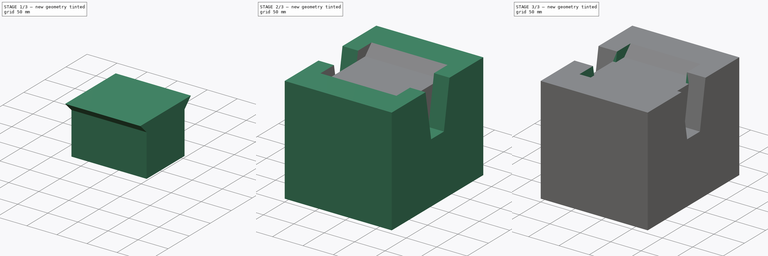
[diagram: build sequence overview — one tinted view per stage of 3, left to right]
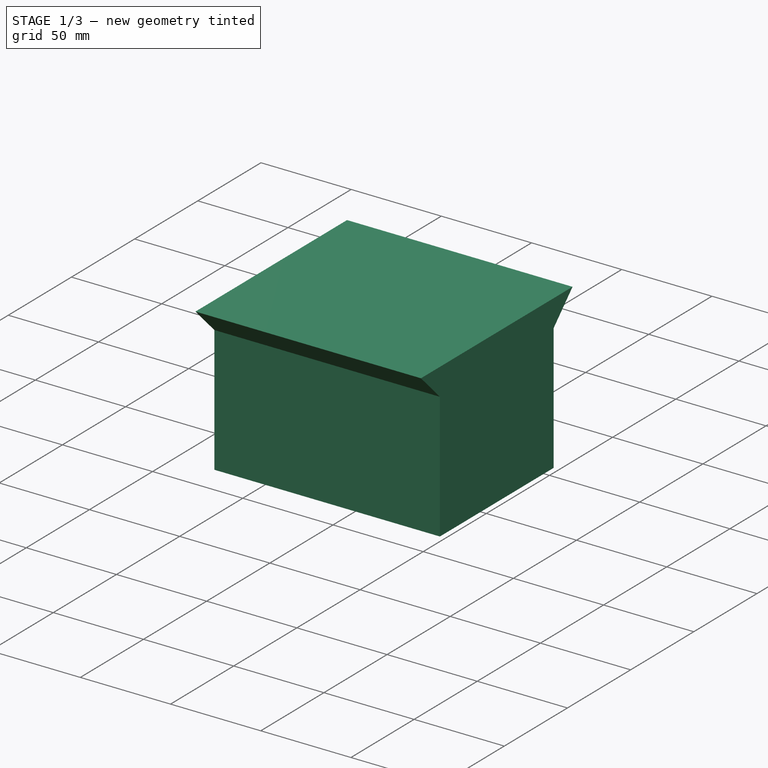
[diagram: stage 1 of 3 — iso view after this stage's code; geometry added in this stage tinted green]
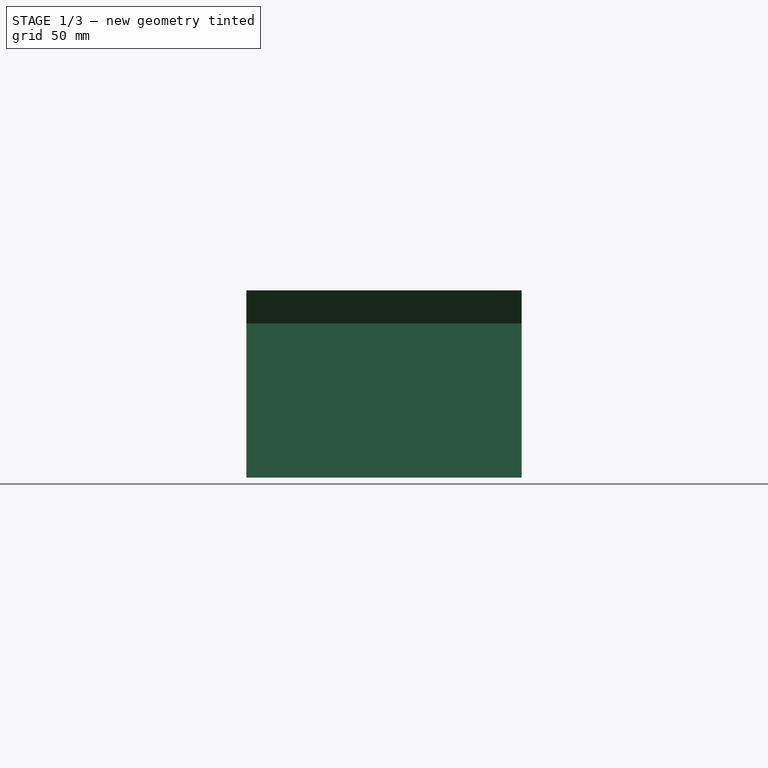
[diagram: stage 1 of 3 — front view after this stage's code; geometry added in this stage tinted green]
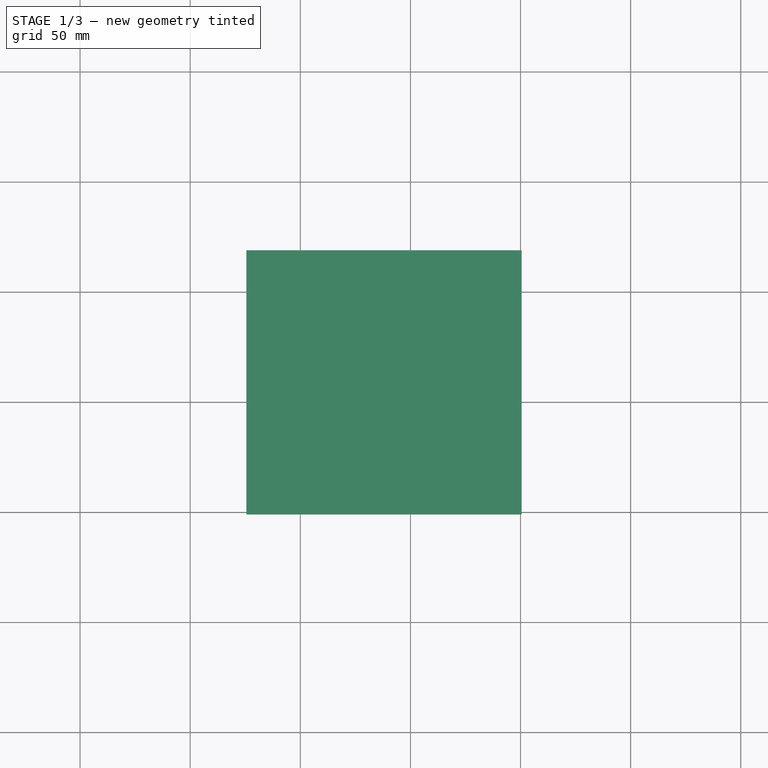
[diagram: stage 1 of 3 — top view after this stage's code; geometry added in this stage tinted green]
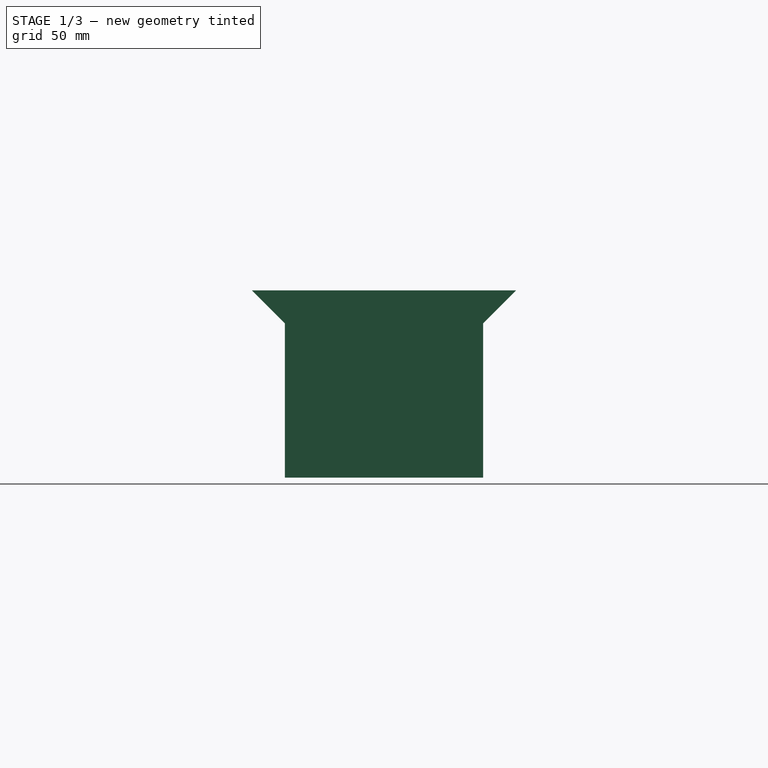
[diagram: stage 1 of 3 — right view after this stage's code; geometry added in this stage tinted green]
FCSTD DOCUMENT  (FreeCAD 1.0R38641 +678 (Git))
Label: CONECTOR-GRUPO-KICAD
License: All rights reserved
LicenseURL: https://en.wikipedia.org/wiki/All_rights_reserved
objects: Sketcher::SketchObject×5, Image::ImagePlane×4, Part::Extrusion×3, Part::MultiFuse×2, Part::Part2DObjectPython×1, Part::Loft×1, Part::Cut×1, Part::Mirroring×1
note: 19 computed .brp shape members not serialized (recipe doc carries the construction recipe); baked Part::Feature solids carry a one-line shape summary decoded from their .brp

FEATURE [Image::ImagePlane] _749067138_OTS_828_065_01  label="1749067138-OTS-828-065-01"
  Placement = pos=(731.861,-216.702,-1) rot=(0,0,1;0rad)
  XSize = 2098.1
  YSize = 1472.9
FEATURE [Sketcher::SketchObject] Sketch
  ArcFitTolerance = 1e-06
  FullyConstrained = true
  MakeInternals = false
  sketch-geometry (4):
    g0: LineSegment StartX=0 StartY=0 StartZ=0 EndX=176 EndY=0 EndZ=0
    g1: LineSegment StartX=176 StartY=0 StartZ=0 EndX=176 EndY=215.1 EndZ=0
    g2: LineSegment StartX=176 StartY=215.1 StartZ=0 EndX=0 EndY=215.1 EndZ=0
    g3: LineSegment StartX=0 StartY=215.1 StartZ=0 EndX=0 EndY=0 EndZ=0
  constraints (11):
    c: Coincident(g0,g1)
    c: Coincident(g1,g2)
    c: Coincident(g2,g3)
    c: Coincident(g3,g0)
    c: Horizontal(g0)
    c: Horizontal(g2)
    c: Vertical(g1)
    c: Vertical(g3)
    c: Coincident(g0,g-1)
    c: DistanceY(g3,g3) = 215.1
    c: DistanceX(g2,g2) = 176
FEATURE [Part::Part2DObjectPython] Rectangle  # Draft 2D object (typed FeaturePython)
  Area = 37857.6
  ChamferSize = 0
  Columns = 1
  FilletRadius = 0
  Height = 215.1
  Length = 176
  MakeFace = true
  Rows = 1
FEATURE [Sketcher::SketchObject] Sketch001
  ArcFitTolerance = 1e-06
  ExternalGeometry = -> [Rectangle]
  FullyConstrained = true
  MakeInternals = false
  Placement = pos=(0,0,0) rot=(0.57735,0.57735,0.57735;2.0944rad)
  sketch-geometry (10):
    g0: LineSegment StartX=0 StartY=0 StartZ=0 EndX=215.1 EndY=0 EndZ=0
    g1: LineSegment StartX=215.1 StartY=0 StartZ=0 EndX=215.1 EndY=175 EndZ=0
    g2: LineSegment StartX=215.1 StartY=175 StartZ=0 EndX=135.775 EndY=175 EndZ=0
    g3: LineSegment StartX=0 StartY=175 StartZ=0 EndX=0 EndY=0 EndZ=0
    g4: LineSegment StartX=79.3255 StartY=175 StartZ=0 EndX=92.55 EndY=100 EndZ=0
    g5: LineSegment StartX=92.55 StartY=100 StartZ=0 EndX=122.55 EndY=100 EndZ=0
    g6: LineSegment StartX=122.55 StartY=100 StartZ=0 EndX=135.775 EndY=175 EndZ=0
    g7: LineSegment [constr] StartX=135.775 StartY=175 StartZ=0 EndX=79.3255 EndY=175 EndZ=0
    g8: LineSegment StartX=79.3255 StartY=175 StartZ=0 EndX=0 EndY=175 EndZ=0
    g9: LineSegment [constr] StartX=107.55 StartY=175 StartZ=0 EndX=107.55 EndY=100 EndZ=0
  constraints (26):
    c: Coincident(g0,g1)
    c: Coincident(g1,g2)
    c: Coincident(g8,g3)
    c: Coincident(g3,g0)
    c: Horizontal(g2)
    c: Vertical(g1)
    c: Vertical(g3)
    c: Coincident(g0,g-1)
    c: Coincident(g0,g-3)
    c: DistanceY(g3,g3) = 175
    c: Coincident(g4,g5)
    c: Coincident(g5,g6)
    c: Coincident(g6,g7)
    c: Coincident(g7,g4)
    c: Horizontal(g5)
    c: Horizontal(g7)
    c: Coincident(g4,g8)
    c: Coincident(g2,g6)
    c: Horizontal(g8)
    c: Symmetric(g7,g7,g9)
    c: Symmetric(g5,g5,g9)
    c: Vertical(g9)
    c: Equal(g8,g2)
    c: DistanceY(g9,g9) = 75
    c: Angle(g5,g4) = 1.74533
    c: Distance(g5,g5) = 30
FEATURE [Part::Extrusion] Extrude
  Base = -> Sketch001
  Dir = (176,0,0)
  DirLink = -> Rectangle [Edge1]
  DirMode = 1
  FaceMakerClass = Part::FaceMakerBullseye
  FaceMakerMode = 3
  LengthFwd = 0
  LengthRev = 0
  Solid = true
  Symmetric = false
FEATURE [Image::ImagePlane] CONECTOR
  Placement = pos=(90,109,175) rot=(0,0,1;0rad)
  XSize = 181.52
  YSize = 219.44
FEATURE [Image::ImagePlane] LATERAL
  Placement = pos=(0,176,8) rot=(0.57735,-0.57735,-0.57735;2.0944rad)
  XSize = 357.48
  YSize = 339.228
FEATURE [Image::ImagePlane] SUPERIOR
  Placement = pos=(45,165,174) rot=(0,0,1;0rad)
  XSize = 411.84
  YSize = 493.12
FEATURE [Sketcher::SketchObject] Sketch002
  ArcFitTolerance = 1e-06
  AttachmentSupport = -> [Extrude]
  ExternalGeometry = -> [Extrude]
  FullyConstrained = true
  MakeInternals = false
  MapMode = 5
  Placement = pos=(0,0,175) rot=(0,0,1;0rad)
  sketch-geometry (24):
    g0: LineSegment StartX=25.5 StartY=167.55 StartZ=0 EndX=25.5 EndY=47.55 EndZ=0
    g1: LineSegment StartX=25.5 StartY=47.55 StartZ=0 EndX=150.5 EndY=47.55 EndZ=0
    g2: LineSegment StartX=150.5 StartY=47.55 StartZ=0 EndX=150.5 EndY=167.55 EndZ=0
    g3: LineSegment StartX=150.5 StartY=167.55 StartZ=0 EndX=25.5 EndY=167.55 EndZ=0
    g4: LineSegment [constr] StartX=25.5 StartY=152.55 StartZ=0 EndX=25.5 EndY=62.55 EndZ=0
    g5: LineSegment [constr] StartX=25.5 StartY=62.55 StartZ=0 EndX=150.5 EndY=62.55 EndZ=0
    g6: LineSegment [constr] StartX=150.5 StartY=62.55 StartZ=0 EndX=150.5 EndY=152.55 EndZ=0
    g7: LineSegment [constr] StartX=150.5 StartY=152.55 StartZ=0 EndX=25.5 EndY=152.55 EndZ=0
    g8: LineSegment [constr] StartX=88 StartY=215.1 StartZ=0 EndX=88 EndY=167.55 EndZ=0
    g9: LineSegment [constr] StartX=88 StartY=167.55 StartZ=0 EndX=88 EndY=152.55 EndZ=0
    g10: LineSegment [constr] StartX=88 StartY=152.55 StartZ=0 EndX=88 EndY=107.55 EndZ=0
    g11: LineSegment [constr] StartX=88 StartY=107.55 StartZ=0 EndX=88 EndY=62.55 EndZ=0
    g12: LineSegment [constr] StartX=88 StartY=62.55 StartZ=0 EndX=88 EndY=47.55 EndZ=0
    g13: LineSegment [constr] StartX=88 StartY=47.55 StartZ=0 EndX=88 EndY=0 EndZ=0
    g14: LineSegment [constr] StartX=0 StartY=107.55 StartZ=0 EndX=25.5 EndY=107.55 EndZ=0
    g15: LineSegment [constr] StartX=25.5 StartY=107.55 StartZ=0 EndX=25.5 EndY=107.55 EndZ=0
    g16: LineSegment [constr] StartX=25.5 StartY=107.55 StartZ=0 EndX=88 EndY=107.55 EndZ=0
    g17: LineSegment [constr] StartX=88 StartY=107.55 StartZ=0 EndX=150.5 EndY=107.55 EndZ=0
    g18: LineSegment [constr] StartX=150.5 StartY=107.55 StartZ=0 EndX=150.5 EndY=107.55 EndZ=0
    g19: LineSegment [constr] StartX=150.5 StartY=107.55 StartZ=0 EndX=176 EndY=107.55 EndZ=0
    g20: LineSegment [constr] StartX=176 StartY=215.1 StartZ=0 EndX=0 EndY=215.1 EndZ=0
    g21: LineSegment [constr] StartX=0 StartY=215.1 StartZ=0 EndX=0 EndY=0 EndZ=0
    g22: LineSegment [constr] StartX=0 StartY=0 StartZ=0 EndX=176 EndY=0 EndZ=0
    g23: LineSegment [constr] StartX=176 StartY=0 StartZ=0 EndX=176 EndY=215.1 EndZ=0
  constraints (63):
    c: Coincident(g1,g2)
    c: Coincident(g2,g3)
    c: Coincident(g3,g0)
    c: Vertical(g0)
    c: Vertical(g2)
    c: Horizontal(g1)
    c: Horizontal(g3)
    c: Coincident(g5,g6)
    c: Coincident(g6,g7)
    c: Coincident(g7,g4)
    c: Vertical(g4)
    c: Vertical(g6)
    c: Horizontal(g5)
    c: Horizontal(g7)
    c: Symmetric(g-3,g-3,g8)
    c: Symmetric(g3,g3,g8)
    c: Vertical(g8)
    c: Coincident(g8,g9)
    c: Symmetric(g7,g7,g9)
    c: Vertical(g9)
    c: Coincident(g9,g10)
    c: Vertical(g10)
    c: Coincident(g10,g11)
    c: Symmetric(g5,g5,g11)
    c: Vertical(g11)
    c: Coincident(g11,g12)
    c: Symmetric(g1,g1,g12)
    c: Vertical(g12)
    c: Coincident(g12,g13)
    c: PointOnObject(g13,g-1)
    c: PointOnObject(g14,g-2)
    c: Symmetric(g0,g0,g14)
    c: Coincident(g14,g15)
    c: Symmetric(g4,g4,g15)
    c: Horizontal(g15)
    c: Coincident(g15,g16)
    c: Coincident(g16,g10)
    c: Horizontal(g16)
    c: Coincident(g16,g17)
    c: Symmetric(g6,g6,g17)
    c: Horizontal(g17)
    c: Coincident(g17,g18)
    c: Symmetric(g2,g2,g18)
    c: Horizontal(g18)
    c: Coincident(g18,g19)
    c: Coincident(g20,g21)
    c: Coincident(g21,g22)
    c: Coincident(g22,g23)
    c: Coincident(g23,g20)
    c: Horizontal(g20)
    c: Horizontal(g22)
    c: Vertical(g21)
    c: Vertical(g23)
    c: Coincident(g21,g-1)
    c: Symmetric(g23,g23,g19)
    c: Horizontal(g14)
    c: Horizontal(g19)
    c: Vertical(g13)
    c: Coincident(g20,g-3)
    c: DistanceY(g2,g2) = 120
    c: DistanceX(g3,g3) = 125
    c: DistanceX(g7,g7) = 125
    c: DistanceY(g4,g4) = 90
FEATURE [Sketcher::SketchObject] Sketch003
  ArcFitTolerance = 1e-06
  ExternalGeometry = -> [Extrude]
  FullyConstrained = true
  MakeInternals = false
  MapMode = 5
  Placement = pos=(0,0,160) rot=(0,0,1;0rad)
  expr: Constraints[59] = Sketch002.Constraints[59]
  expr: Constraints[60] = Sketch002.Constraints[60]
  expr: Constraints[61] = Sketch002.Constraints[61]
  expr: Constraints[62] = Sketch002.Constraints[62]
  sketch-geometry (24):
    g0: LineSegment [constr] StartX=25.5 StartY=167.55 StartZ=0 EndX=25.5 EndY=47.55 EndZ=0
    g1: LineSegment [constr] StartX=25.5 StartY=47.55 StartZ=0 EndX=150.5 EndY=47.55 EndZ=0
    g2: LineSegment [constr] StartX=150.5 StartY=47.55 StartZ=0 EndX=150.5 EndY=167.55 EndZ=0
    g3: LineSegment [constr] StartX=150.5 StartY=167.55 StartZ=0 EndX=25.5 EndY=167.55 EndZ=0
    g4: LineSegment StartX=25.5 StartY=152.55 StartZ=0 EndX=25.5 EndY=62.55 EndZ=0
    g5: LineSegment StartX=25.5 StartY=62.55 StartZ=0 EndX=150.5 EndY=62.55 EndZ=0
    g6: LineSegment StartX=150.5 StartY=62.55 StartZ=0 EndX=150.5 EndY=152.55 EndZ=0
    g7: LineSegment StartX=150.5 StartY=152.55 StartZ=0 EndX=25.5 EndY=152.55 EndZ=0
    g8: LineSegment [constr] StartX=88 StartY=215.1 StartZ=0 EndX=88 EndY=167.55 EndZ=0
    g9: LineSegment [constr] StartX=88 StartY=167.55 StartZ=0 EndX=88 EndY=152.55 EndZ=0
    g10: LineSegment [constr] StartX=88 StartY=152.55 StartZ=0 EndX=88 EndY=107.55 EndZ=0
    g11: LineSegment [constr] StartX=88 StartY=107.55 StartZ=0 EndX=88 EndY=62.55 EndZ=0
    g12: LineSegment [constr] StartX=88 StartY=62.55 StartZ=0 EndX=88 EndY=47.55 EndZ=0
    g13: LineSegment [constr] StartX=88 StartY=47.55 StartZ=0 EndX=88 EndY=0 EndZ=0
    g14: LineSegment [constr] StartX=0 StartY=107.55 StartZ=0 EndX=25.5 EndY=107.55 EndZ=0
    g15: LineSegment [constr] StartX=25.5 StartY=107.55 StartZ=0 EndX=25.5 EndY=107.55 EndZ=0
    g16: LineSegment [constr] StartX=25.5 StartY=107.55 StartZ=0 EndX=88 EndY=107.55 EndZ=0
    g17: LineSegment [constr] StartX=88 StartY=107.55 StartZ=0 EndX=150.5 EndY=107.55 EndZ=0
    g18: LineSegment [constr] StartX=150.5 StartY=107.55 StartZ=0 EndX=150.5 EndY=107.55 EndZ=0
    g19: LineSegment [constr] StartX=150.5 StartY=107.55 StartZ=0 EndX=176 EndY=107.55 EndZ=0
    g20: LineSegment [constr] StartX=176 StartY=215.1 StartZ=0 EndX=0 EndY=215.1 EndZ=0
    g21: LineSegment [constr] StartX=0 StartY=215.1 StartZ=0 EndX=0 EndY=0 EndZ=0
    g22: LineSegment [constr] StartX=0 StartY=0 StartZ=0 EndX=176 EndY=0 EndZ=0
    g23: LineSegment [constr] StartX=176 StartY=0 StartZ=0 EndX=176 EndY=215.1 EndZ=0
  constraints (63):
    c: Coincident(g1,g2)
    c: Coincident(g2,g3)
    c: Coincident(g3,g0)
    c: Vertical(g0)
    c: Vertical(g2)
    c: Horizontal(g1)
    c: Horizontal(g3)
    c: Coincident(g5,g6)
    c: Coincident(g6,g7)
    c: Coincident(g7,g4)
    c: Vertical(g4)
    c: Vertical(g6)
    c: Horizontal(g5)
    c: Horizontal(g7)
    c: Symmetric(g-3,g-3,g8)
    c: Symmetric(g3,g3,g8)
    c: Vertical(g8)
    c: Coincident(g8,g9)
    c: Symmetric(g7,g7,g9)
    c: Vertical(g9)
    c: Coincident(g9,g10)
    c: Vertical(g10)
    c: Coincident(g10,g11)
    c: Symmetric(g5,g5,g11)
    c: Vertical(g11)
    c: Coincident(g11,g12)
    c: Symmetric(g1,g1,g12)
    c: Vertical(g12)
    c: Coincident(g12,g13)
    c: PointOnObject(g13,g-1)
    c: PointOnObject(g14,g-2)
    c: Symmetric(g0,g0,g14)
    c: Coincident(g14,g15)
    c: Symmetric(g4,g4,g15)
    c: Horizontal(g15)
    c: Coincident(g15,g16)
    c: Coincident(g16,g10)
    c: Horizontal(g16)
    c: Coincident(g16,g17)
    c: Symmetric(g6,g6,g17)
    c: Horizontal(g17)
    c: Coincident(g17,g18)
    c: Symmetric(g2,g2,g18)
    c: Horizontal(g18)
    c: Coincident(g18,g19)
    c: Coincident(g20,g21)
    c: Coincident(g21,g22)
    c: Coincident(g22,g23)
    c: Coincident(g23,g20)
    c: Horizontal(g20)
    c: Horizontal(g22)
    c: Vertical(g21)
    c: Vertical(g23)
    c: Coincident(g21,g-1)
    c: Symmetric(g23,g23,g19)
    c: Horizontal(g14)
    c: Horizontal(g19)
    c: Vertical(g13)
    c: Coincident(g20,g-3)
    c: DistanceY(g2,g2) = 120
    c: DistanceX(g3,g3) = 125
    c: DistanceX(g7,g7) = 125
    c: DistanceY(g4,g4) = 90
FEATURE [Part::Loft] Loft
  Closed = false
  MaxDegree = 5
  Ruled = true
  Sections = -> [Sketch002,Sketch003]
  Solid = true
FEATURE [Part::Extrusion] Extrude001
  Base = -> Sketch003
  Dir = (0,0,1)
  DirMode = 2
  FaceMakerClass = Part::FaceMakerBullseye
  FaceMakerMode = 3
  LengthFwd = 70
  LengthRev = 0
  Reversed = true
  Solid = true
  Symmetric = false
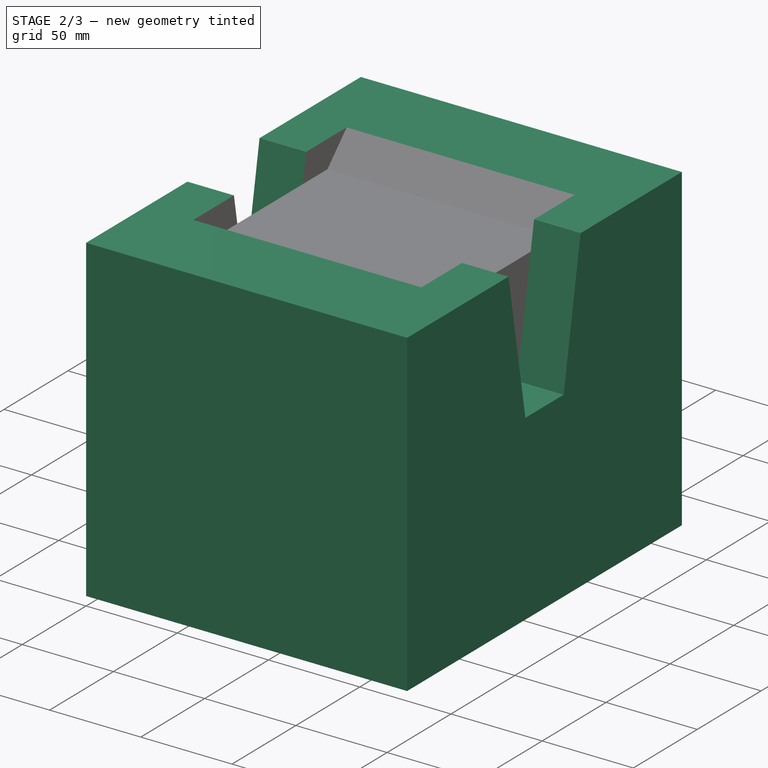
[diagram: stage 2 of 3 — iso view after this stage's code; geometry added in this stage tinted green]
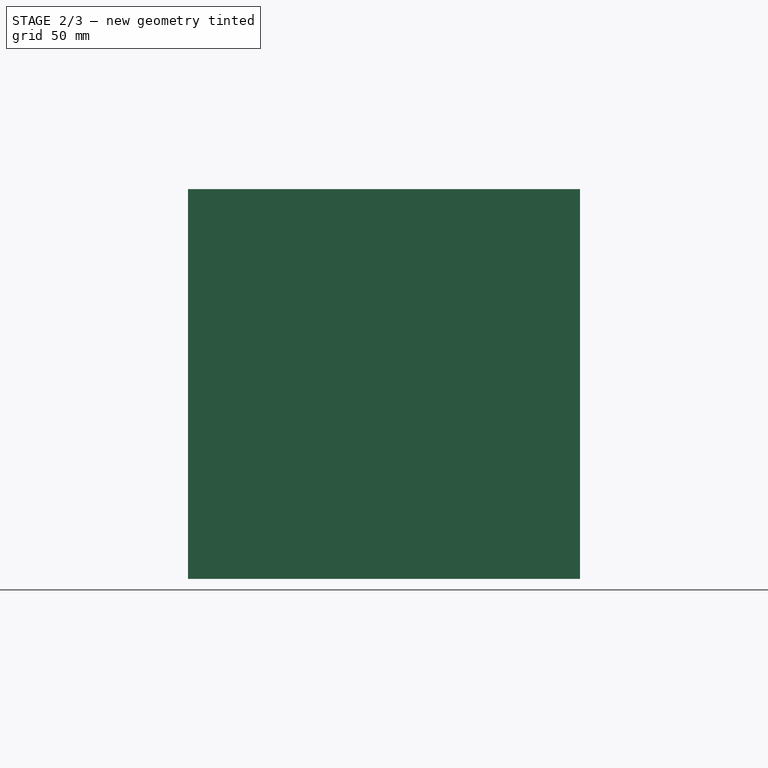
[diagram: stage 2 of 3 — front view after this stage's code; geometry added in this stage tinted green]
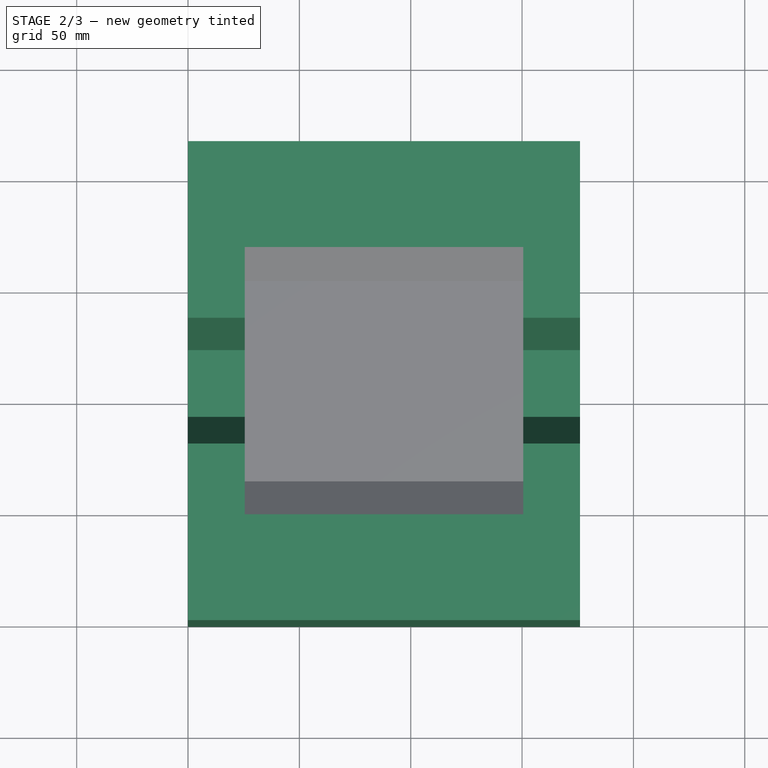
[diagram: stage 2 of 3 — top view after this stage's code; geometry added in this stage tinted green]
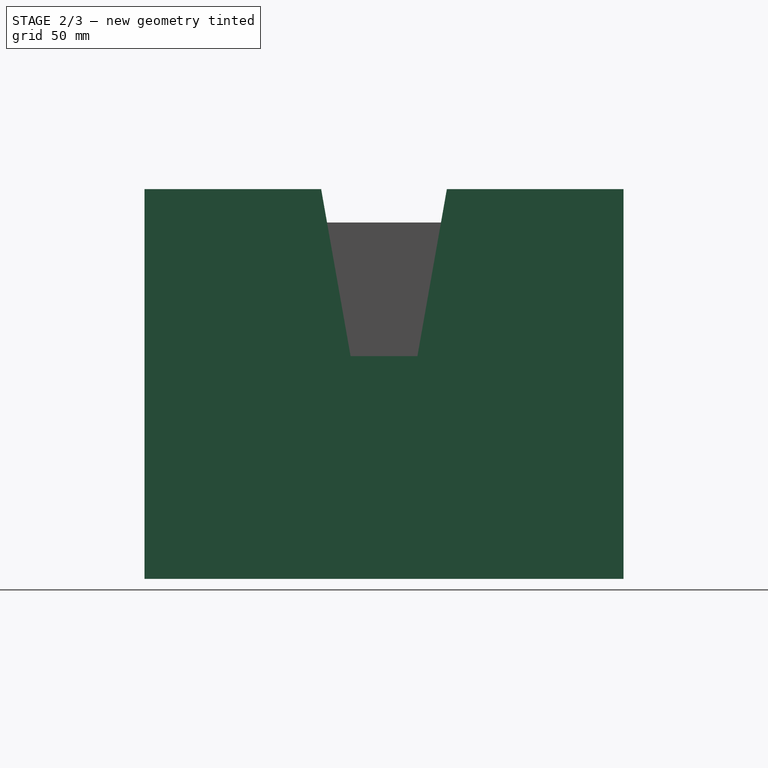
[diagram: stage 2 of 3 — right view after this stage's code; geometry added in this stage tinted green]
FEATURE [Part::Cut] Cut
  Base = -> Extrude
  Refine = true
  Tool = -> Loft
FEATURE [Part::MultiFuse] Fusion
  Refine = true
  Shapes = -> [Cut,Extrude001]
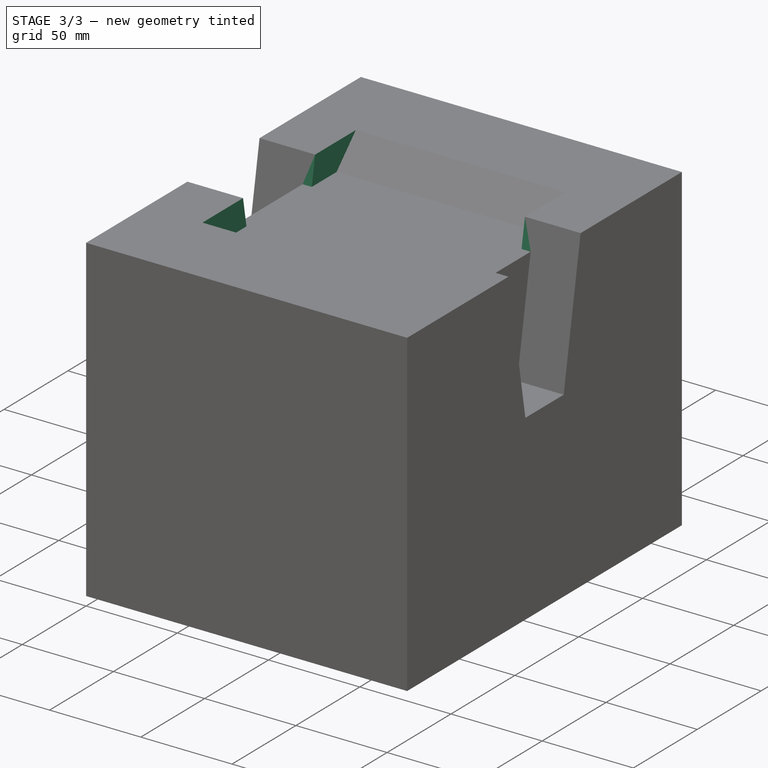
[diagram: stage 3 of 3 — iso view after this stage's code; geometry added in this stage tinted green]
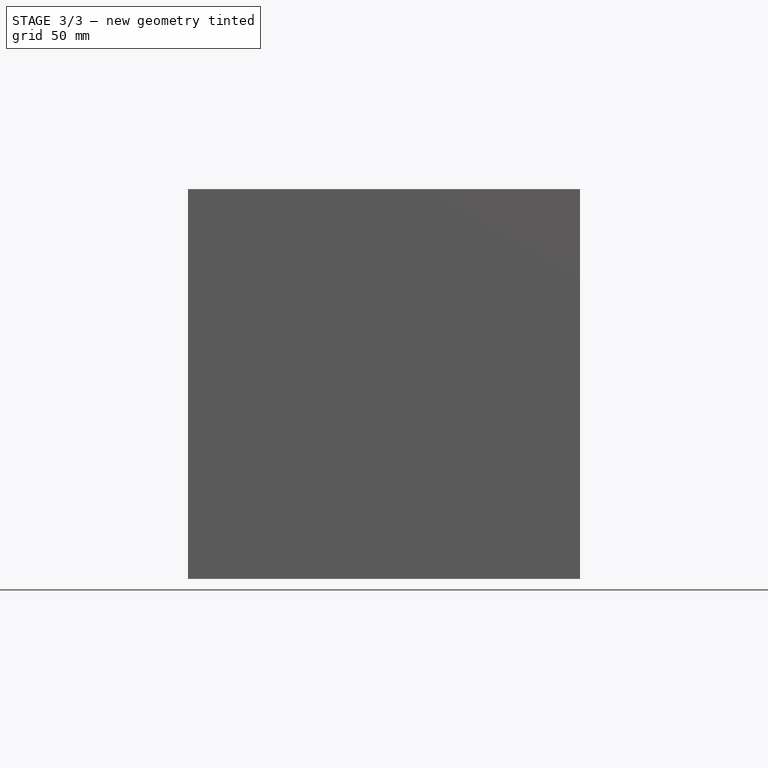
[diagram: stage 3 of 3 — front view after this stage's code; geometry added in this stage tinted green]
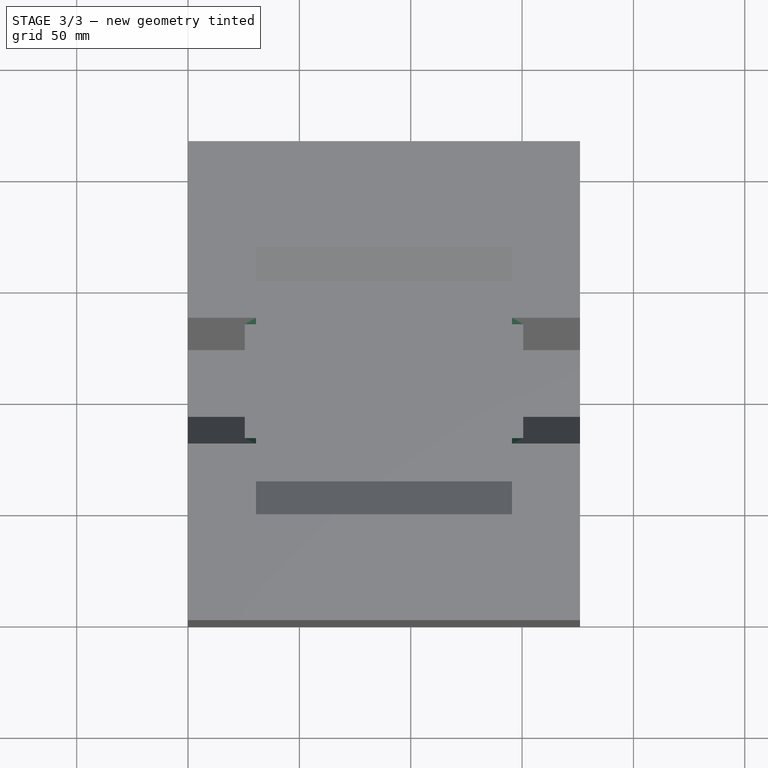
[diagram: stage 3 of 3 — top view after this stage's code; geometry added in this stage tinted green]
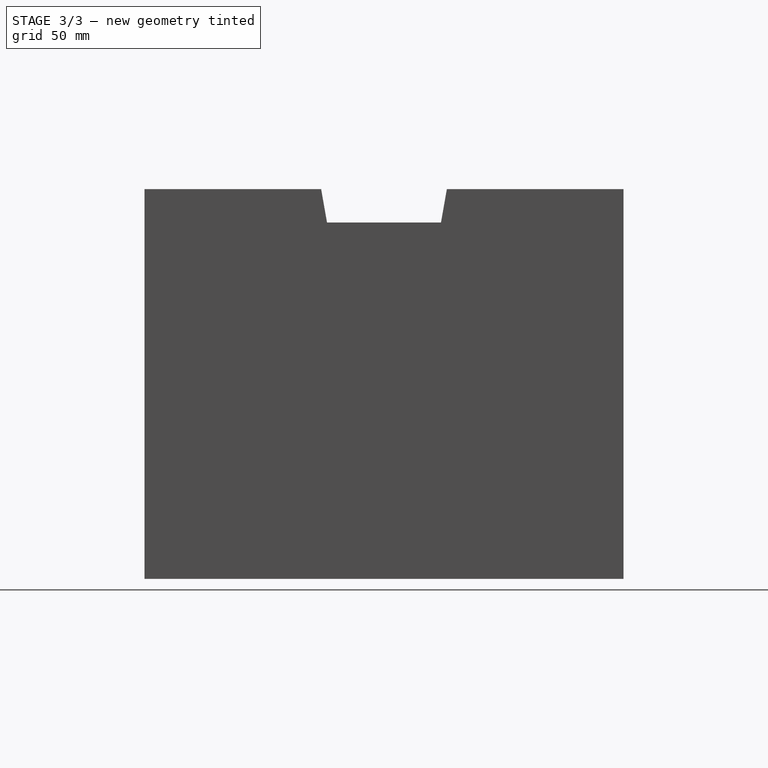
[diagram: stage 3 of 3 — right view after this stage's code; geometry added in this stage tinted green]
FEATURE [Sketcher::SketchObject] Sketch004
  ArcFitTolerance = 1e-06
  AttachmentSupport = -> [Extrude001]
  ExternalGeometry = -> [Fusion]
  FullyConstrained = true
  MakeInternals = false
  MapMode = 5
  Placement = pos=(25.5,0,0) rot=(0.57735,-0.57735,-0.57735;2.0944rad)
  sketch-geometry (8):
    g0: LineSegment StartX=-81.9704 StartY=160 StartZ=0 EndX=-62.55 EndY=160 EndZ=0
    g1: LineSegment StartX=-62.55 StartY=160 StartZ=0 EndX=-47.55 EndY=175 EndZ=0
    g2: LineSegment StartX=-47.55 StartY=175 StartZ=0 EndX=-79.3255 EndY=175 EndZ=0
    g3: LineSegment StartX=-79.3255 StartY=175 StartZ=0 EndX=-81.9704 EndY=160 EndZ=0
    g4: LineSegment StartX=-133.13 StartY=160 StartZ=0 EndX=-135.775 EndY=175 EndZ=0
    g5: LineSegment StartX=-135.775 StartY=175 StartZ=0 EndX=-167.55 EndY=175 EndZ=0
    g6: LineSegment StartX=-167.55 StartY=175 StartZ=0 EndX=-152.55 EndY=160 EndZ=0
    g7: LineSegment StartX=-152.55 StartY=160 StartZ=0 EndX=-133.13 EndY=160 EndZ=0
  constraints (16):
    c: Coincident(g0,g1)
    c: Coincident(g1,g-6)
    c: Coincident(g1,g2)
    c: Coincident(g2,g-5)
    c: Coincident(g2,g3)
    c: Coincident(g5,g6)
    c: Coincident(g6,g7)
    c: Coincident(g4,g5)
    c: Coincident(g4,g-4)
    c: Coincident(g5,g-3)
    c: Coincident(g6,g-3)
    c: Coincident(g4,g7)
    c: Coincident(g4,g-4)
    c: Coincident(g0,g3)
    c: Coincident(g0,g-5)
    c: Coincident(g0,g-6)
FEATURE [Part::Extrusion] Extrude002
  Base = -> Sketch004
  Dir = (-1,0,0)
  DirMode = 2
  FaceMakerClass = Part::FaceMakerBullseye
  FaceMakerMode = 3
  LengthFwd = 5
  LengthRev = 0
  Reversed = true
  Solid = true
  Symmetric = false
FEATURE [Part::Mirroring] Mirror  label="Extrude002 (mirrored)"
  Base = (88,0,0)
  Normal = (1,0,0)
  Source = -> Extrude002
FEATURE [Part::MultiFuse] Fusion001
  Refine = true
  Shapes = -> [Fusion,Mirror,Extrude002]
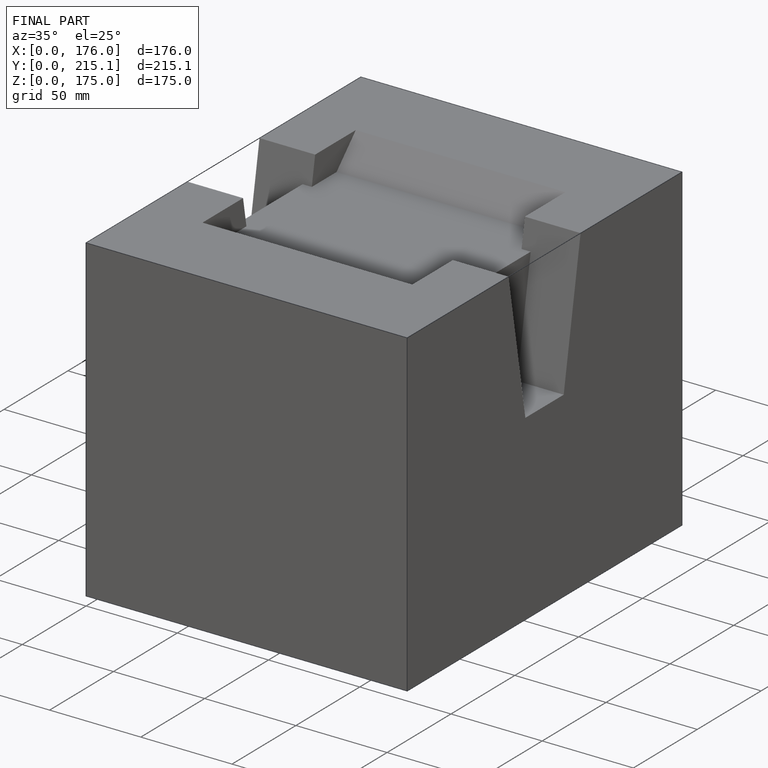
[diagram: finished part — iso view with bounding-box wireframe]
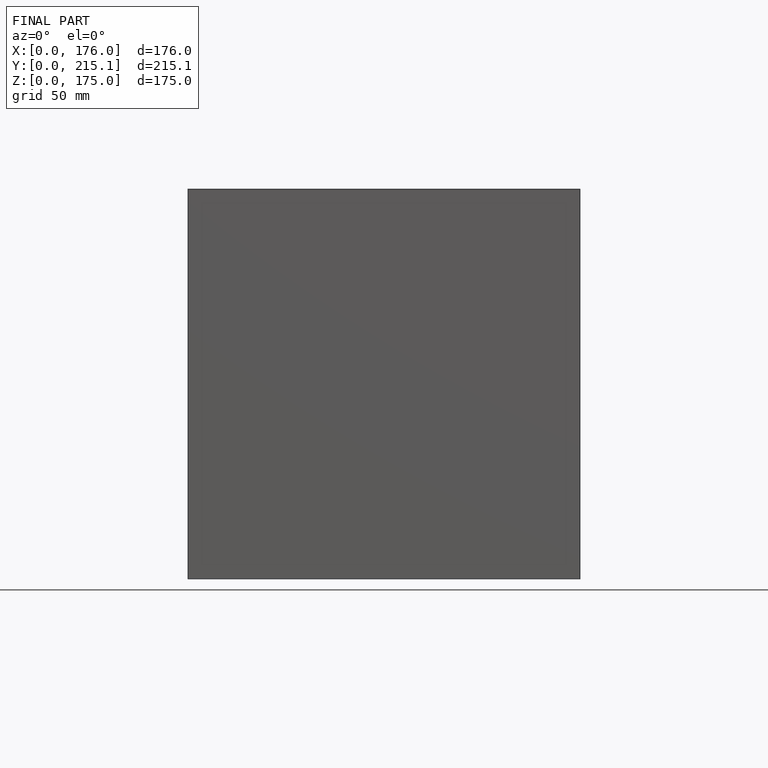
[diagram: finished part — front view with bounding-box wireframe]
